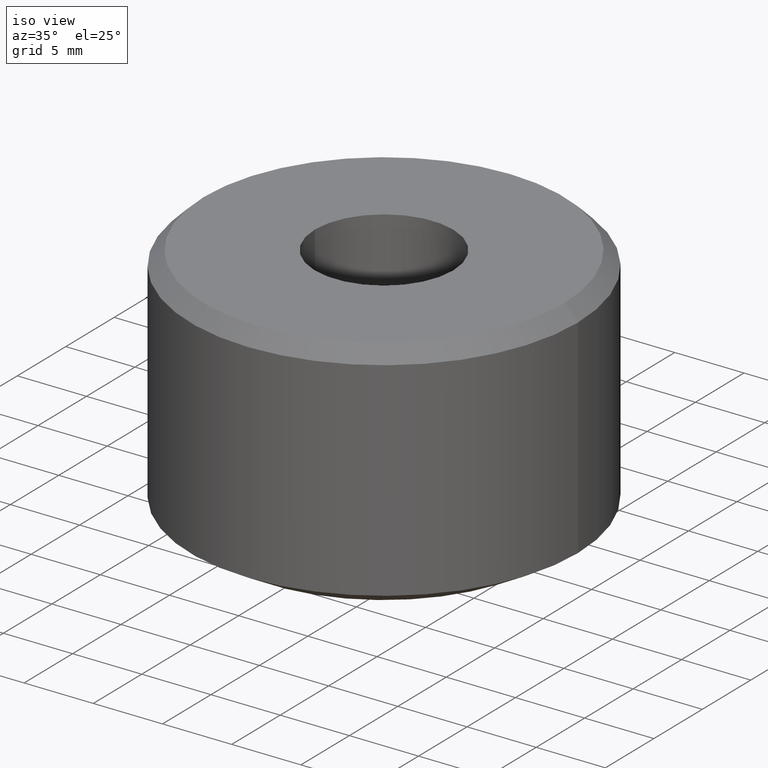
[diagram: clean part render]
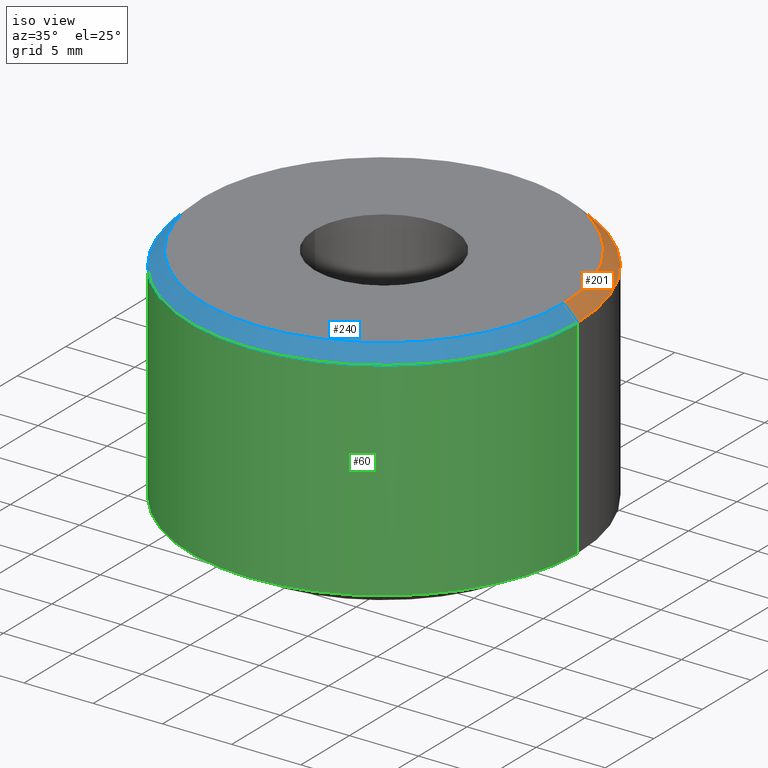
[diagram: same view with three faces highlighted in distinct colors, each labeled with its STEP entity id]
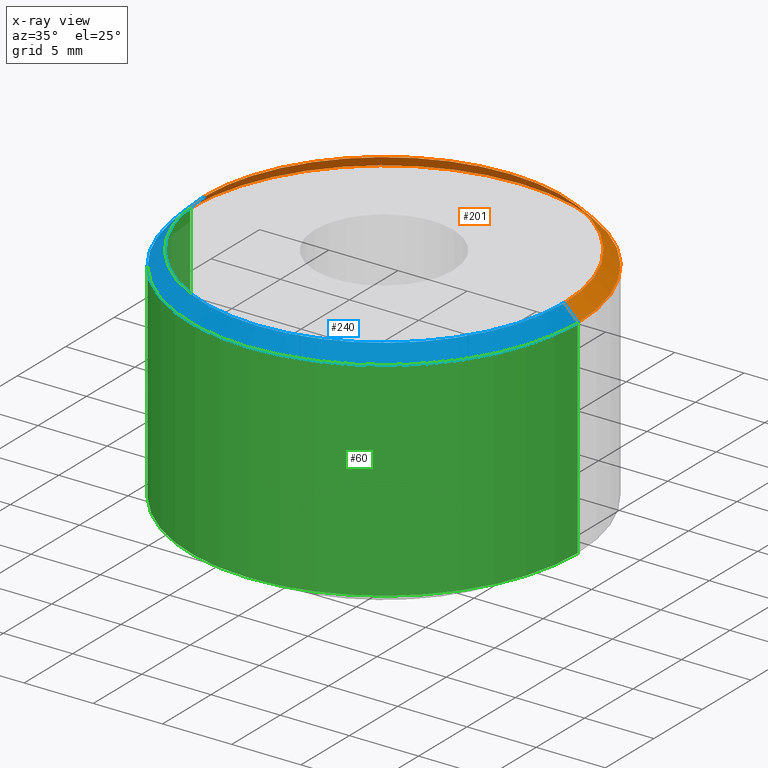
[diagram: x-ray of the same camera — body ghosted, the three highlighted faces saturated]
A machine part, iso view with three faces highlighted in distinct colors.
The next image is the same camera in x-ray (body ghosted, the three faces saturated) — at least one of them is partly hidden behind the body in this view.
Their STEP definitions:

[orange] entity #201 — the highlighted conical surface has half-angle 45 deg.
#5 = CIRCLE ( 'NONE', #317, 14.00000000000001200 ) ;
#11 = EDGE_CURVE ( 'NONE', #282, #342, #228, .T. ) ;
#18 = CONICAL_SURFACE ( 'NONE', #116, 14.00000000000001200, 0.7853981633974482800 ) ;
#25 = CARTESIAN_POINT ( 'NONE',  ( -14.00000000000001200, -5.551115123125782700E-014, 16.50000000000018100 ) ) ;
#30 = DIRECTION ( 'NONE',  ( -1.000000000000000000, 0.0000000000000000000, 0.0000000000000000000 ) ) ;
#48 = LINE ( 'NONE', #263, #262 ) ;
#62 = CARTESIAN_POINT ( 'NONE',  ( -14.00000000000001200, -5.551115123125782700E-014, 16.50000000000018100 ) ) ;
#75 = ORIENTED_EDGE ( 'NONE', *, *, #11, .T. ) ;
#78 = DIRECTION ( 'NONE',  ( 0.7071067811865474600, 8.659560562354931600E-017, -0.7071067811865475700 ) ) ;
#87 = CARTESIAN_POINT ( 'NONE',  ( 0.0000000000000000000, -5.551115123125782700E-014, 16.50000000000018100 ) ) ;
#88 = ORIENTED_EDGE ( 'NONE', *, *, #344, .T. ) ;
#112 = FACE_OUTER_BOUND ( 'NONE', #129, .T. ) ;
#115 = DIRECTION ( 'NONE',  ( -1.000000000000000000, 0.0000000000000000000, 0.0000000000000000000 ) ) ;
#116 = AXIS2_PLACEMENT_3D ( 'NONE', #287, #210, #30 ) ;
#129 = EDGE_LOOP ( 'NONE', ( #75, #88, #232, #339 ) ) ;
#134 = VERTEX_POINT ( 'NONE', #25 ) ;
#136 = VECTOR ( 'NONE', #252, 1000.000000000000000 ) ;
#138 = CARTESIAN_POINT ( 'NONE',  ( 0.0000000000000000000, -5.551115123125782700E-014, 17.50000000000007100 ) ) ;
#167 = DIRECTION ( 'NONE',  ( -0.0000000000000000000, -0.0000000000000000000, -1.000000000000000000 ) ) ;
#185 = VERTEX_POINT ( 'NONE', #237 ) ;
#201 = ADVANCED_FACE ( 'NONE', ( #112 ), #18, .T. ) ;
#210 = DIRECTION ( 'NONE',  ( -0.0000000000000000000, -0.0000000000000000000, -1.000000000000000000 ) ) ;
#228 = CIRCLE ( 'NONE', #319, 13.00000000000012300 ) ;
#229 = CARTESIAN_POINT ( 'NONE',  ( 13.00000000000012300, -5.385787805240889000E-014, 17.50000000000007100 ) ) ;
#232 = ORIENTED_EDGE ( 'NONE', *, *, #275, .F. ) ;
#237 = CARTESIAN_POINT ( 'NONE',  ( 14.00000000000001200, -5.379664571245152900E-014, 16.50000000000018100 ) ) ;
#239 = CARTESIAN_POINT ( 'NONE',  ( -13.00000000000012300, -5.551115123125782700E-014, 17.50000000000007100 ) ) ;
#247 = DIRECTION ( 'NONE',  ( -0.0000000000000000000, -0.0000000000000000000, -1.000000000000000000 ) ) ;
#252 = DIRECTION ( 'NONE',  ( -0.7071067811865474600, 0.0000000000000000000, -0.7071067811865475700 ) ) ;
#262 = VECTOR ( 'NONE', #78, 1000.000000000000000 ) ;
#263 = CARTESIAN_POINT ( 'NONE',  ( 14.00000000000001200, -5.379664571245152900E-014, 16.50000000000018100 ) ) ;
#275 = EDGE_CURVE ( 'NONE', #134, #185, #5, .T. ) ;
#277 = LINE ( 'NONE', #62, #136 ) ;
#282 = VERTEX_POINT ( 'NONE', #239 ) ;
#287 = CARTESIAN_POINT ( 'NONE',  ( 0.0000000000000000000, -5.551115123125782700E-014, 16.50000000000018100 ) ) ;
#290 = EDGE_CURVE ( 'NONE', #282, #134, #277, .T. ) ;
#317 = AXIS2_PLACEMENT_3D ( 'NONE', #87, #167, #115 ) ;
#319 = AXIS2_PLACEMENT_3D ( 'NONE', #138, #247, #327 ) ;
#327 = DIRECTION ( 'NONE',  ( -1.000000000000000000, 0.0000000000000000000, 0.0000000000000000000 ) ) ;
#339 = ORIENTED_EDGE ( 'NONE', *, *, #290, .F. ) ;
#342 = VERTEX_POINT ( 'NONE', #229 ) ;
#344 = EDGE_CURVE ( 'NONE', #342, #185, #48, .T. ) ;

[blue] entity #240 — the highlighted conical surface has half-angle 45 deg.
#3 = FACE_OUTER_BOUND ( 'NONE', #166, .T. ) ;
#10 = CONICAL_SURFACE ( 'NONE', #29, 14.00000000000001200, 0.7853981633974482800 ) ;
#22 = EDGE_CURVE ( 'NONE', #185, #134, #57, .T. ) ;
#24 = ORIENTED_EDGE ( 'NONE', *, *, #141, .T. ) ;
#25 = CARTESIAN_POINT ( 'NONE',  ( -14.00000000000001200, -5.551115123125782700E-014, 16.50000000000018100 ) ) ;
#29 = AXIS2_PLACEMENT_3D ( 'NONE', #132, #117, #41 ) ;
#39 = DIRECTION ( 'NONE',  ( -1.000000000000000000, 0.0000000000000000000, 0.0000000000000000000 ) ) ;
#41 = DIRECTION ( 'NONE',  ( -1.000000000000000000, 0.0000000000000000000, 0.0000000000000000000 ) ) ;
#47 = AXIS2_PLACEMENT_3D ( 'NONE', #292, #176, #332 ) ;
#48 = LINE ( 'NONE', #263, #262 ) ;
#57 = CIRCLE ( 'NONE', #47, 14.00000000000001200 ) ;
#62 = CARTESIAN_POINT ( 'NONE',  ( -14.00000000000001200, -5.551115123125782700E-014, 16.50000000000018100 ) ) ;
#78 = DIRECTION ( 'NONE',  ( 0.7071067811865474600, 8.659560562354931600E-017, -0.7071067811865475700 ) ) ;
#117 = DIRECTION ( 'NONE',  ( -0.0000000000000000000, -0.0000000000000000000, -1.000000000000000000 ) ) ;
#132 = CARTESIAN_POINT ( 'NONE',  ( 0.0000000000000000000, -5.551115123125782700E-014, 16.50000000000018100 ) ) ;
#134 = VERTEX_POINT ( 'NONE', #25 ) ;
#136 = VECTOR ( 'NONE', #252, 1000.000000000000000 ) ;
#141 = EDGE_CURVE ( 'NONE', #342, #282, #214, .T. ) ;
#154 = ORIENTED_EDGE ( 'NONE', *, *, #22, .F. ) ;
#166 = EDGE_LOOP ( 'NONE', ( #276, #24, #191, #154 ) ) ;
#176 = DIRECTION ( 'NONE',  ( -0.0000000000000000000, -0.0000000000000000000, -1.000000000000000000 ) ) ;
#185 = VERTEX_POINT ( 'NONE', #237 ) ;
#190 = AXIS2_PLACEMENT_3D ( 'NONE', #226, #250, #39 ) ;
#191 = ORIENTED_EDGE ( 'NONE', *, *, #290, .T. ) ;
#214 = CIRCLE ( 'NONE', #190, 13.00000000000012300 ) ;
#226 = CARTESIAN_POINT ( 'NONE',  ( 0.0000000000000000000, -5.551115123125782700E-014, 17.50000000000007100 ) ) ;
#229 = CARTESIAN_POINT ( 'NONE',  ( 13.00000000000012300, -5.385787805240889000E-014, 17.50000000000007100 ) ) ;
#237 = CARTESIAN_POINT ( 'NONE',  ( 14.00000000000001200, -5.379664571245152900E-014, 16.50000000000018100 ) ) ;
#239 = CARTESIAN_POINT ( 'NONE',  ( -13.00000000000012300, -5.551115123125782700E-014, 17.50000000000007100 ) ) ;
#240 = ADVANCED_FACE ( 'NONE', ( #3 ), #10, .T. ) ;
#250 = DIRECTION ( 'NONE',  ( -0.0000000000000000000, -0.0000000000000000000, -1.000000000000000000 ) ) ;
#252 = DIRECTION ( 'NONE',  ( -0.7071067811865474600, 0.0000000000000000000, -0.7071067811865475700 ) ) ;
#262 = VECTOR ( 'NONE', #78, 1000.000000000000000 ) ;
#263 = CARTESIAN_POINT ( 'NONE',  ( 14.00000000000001200, -5.379664571245152900E-014, 16.50000000000018100 ) ) ;
#276 = ORIENTED_EDGE ( 'NONE', *, *, #344, .F. ) ;
#277 = LINE ( 'NONE', #62, #136 ) ;
#282 = VERTEX_POINT ( 'NONE', #239 ) ;
#290 = EDGE_CURVE ( 'NONE', #282, #134, #277, .T. ) ;
#292 = CARTESIAN_POINT ( 'NONE',  ( 0.0000000000000000000, -5.551115123125782700E-014, 16.50000000000018100 ) ) ;
#332 = DIRECTION ( 'NONE',  ( -1.000000000000000000, 0.0000000000000000000, 0.0000000000000000000 ) ) ;
#342 = VERTEX_POINT ( 'NONE', #229 ) ;
#344 = EDGE_CURVE ( 'NONE', #342, #185, #48, .T. ) ;

[green] entity #60 — the highlighted cylindrical surface (partial cylindrical patch) has radius 14 mm, axis along (-0, -0, -1).
#17 = VECTOR ( 'NONE', #196, 1000.000000000000000 ) ;
#22 = EDGE_CURVE ( 'NONE', #185, #134, #57, .T. ) ;
#25 = CARTESIAN_POINT ( 'NONE',  ( -14.00000000000001200, -5.551115123125782700E-014, 16.50000000000018100 ) ) ;
#34 = CARTESIAN_POINT ( 'NONE',  ( 0.0000000000000000000, -5.551115123125782700E-014, 4.831493894172288300E-013 ) ) ;
#47 = AXIS2_PLACEMENT_3D ( 'NONE', #292, #176, #332 ) ;
#54 = ORIENTED_EDGE ( 'NONE', *, *, #142, .F. ) ;
#57 = CIRCLE ( 'NONE', #47, 14.00000000000001200 ) ;
#60 = ADVANCED_FACE ( 'NONE', ( #169 ), #217, .T. ) ;
#66 = LINE ( 'NONE', #135, #17 ) ;
#90 = CIRCLE ( 'NONE', #106, 14.00000000000001200 ) ;
#92 = CARTESIAN_POINT ( 'NONE',  ( 14.00000000000001200, -5.379664571245152900E-014, 4.831493894172288300E-013 ) ) ;
#94 = CARTESIAN_POINT ( 'NONE',  ( -14.00000000000001200, -5.379664571245152900E-014, 1.443375672973923300 ) ) ;
#96 = DIRECTION ( 'NONE',  ( -0.0000000000000000000, -0.0000000000000000000, -1.000000000000000000 ) ) ;
#97 = DIRECTION ( 'NONE',  ( -1.000000000000000000, 0.0000000000000000000, 0.0000000000000000000 ) ) ;
#98 = DIRECTION ( 'NONE',  ( -1.000000000000000000, 0.0000000000000000000, 0.0000000000000000000 ) ) ;
#99 = EDGE_CURVE ( 'NONE', #324, #118, #90, .T. ) ;
#106 = AXIS2_PLACEMENT_3D ( 'NONE', #304, #333, #97 ) ;
#107 = EDGE_CURVE ( 'NONE', #134, #118, #66, .T. ) ;
#108 = LINE ( 'NONE', #92, #300 ) ;
#110 = ORIENTED_EDGE ( 'NONE', *, *, #99, .F. ) ;
#118 = VERTEX_POINT ( 'NONE', #94 ) ;
#134 = VERTEX_POINT ( 'NONE', #25 ) ;
#135 = CARTESIAN_POINT ( 'NONE',  ( -14.00000000000001200, -5.551115123125782700E-014, 4.831493894172288300E-013 ) ) ;
#142 = EDGE_CURVE ( 'NONE', #185, #324, #108, .T. ) ;
#143 = ORIENTED_EDGE ( 'NONE', *, *, #107, .T. ) ;
#169 = FACE_OUTER_BOUND ( 'NONE', #179, .T. ) ;
#176 = DIRECTION ( 'NONE',  ( -0.0000000000000000000, -0.0000000000000000000, -1.000000000000000000 ) ) ;
#179 = EDGE_LOOP ( 'NONE', ( #54, #254, #143, #110 ) ) ;
#185 = VERTEX_POINT ( 'NONE', #237 ) ;
#196 = DIRECTION ( 'NONE',  ( -0.0000000000000000000, -0.0000000000000000000, -1.000000000000000000 ) ) ;
#217 = CYLINDRICAL_SURFACE ( 'NONE', #227, 14.00000000000001200 ) ;
#227 = AXIS2_PLACEMENT_3D ( 'NONE', #34, #96, #98 ) ;
#237 = CARTESIAN_POINT ( 'NONE',  ( 14.00000000000001200, -5.379664571245152900E-014, 16.50000000000018100 ) ) ;
#254 = ORIENTED_EDGE ( 'NONE', *, *, #22, .T. ) ;
#292 = CARTESIAN_POINT ( 'NONE',  ( 0.0000000000000000000, -5.551115123125782700E-014, 16.50000000000018100 ) ) ;
#300 = VECTOR ( 'NONE', #320, 1000.000000000000000 ) ;
#304 = CARTESIAN_POINT ( 'NONE',  ( 0.0000000000000000000, -5.551115123125782700E-014, 1.443375672973923300 ) ) ;
#320 = DIRECTION ( 'NONE',  ( -0.0000000000000000000, -0.0000000000000000000, -1.000000000000000000 ) ) ;
#323 = CARTESIAN_POINT ( 'NONE',  ( 14.00000000000001200, -5.551115123125782700E-014, 1.443375672973923300 ) ) ;
#324 = VERTEX_POINT ( 'NONE', #323 ) ;
#332 = DIRECTION ( 'NONE',  ( -1.000000000000000000, 0.0000000000000000000, 0.0000000000000000000 ) ) ;
#333 = DIRECTION ( 'NONE',  ( -0.0000000000000000000, -0.0000000000000000000, -1.000000000000000000 ) ) ;